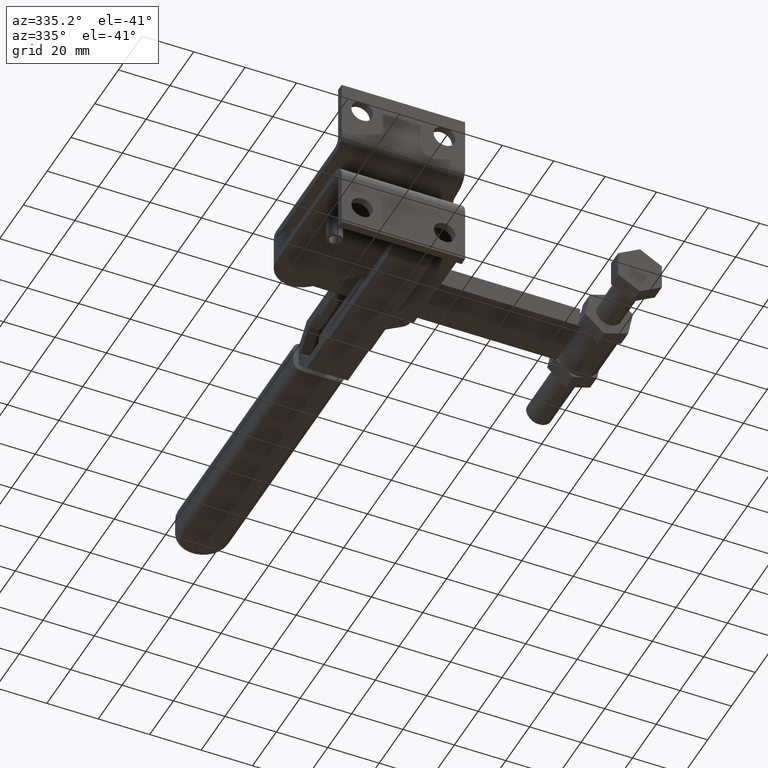
[diagram: clean part render]
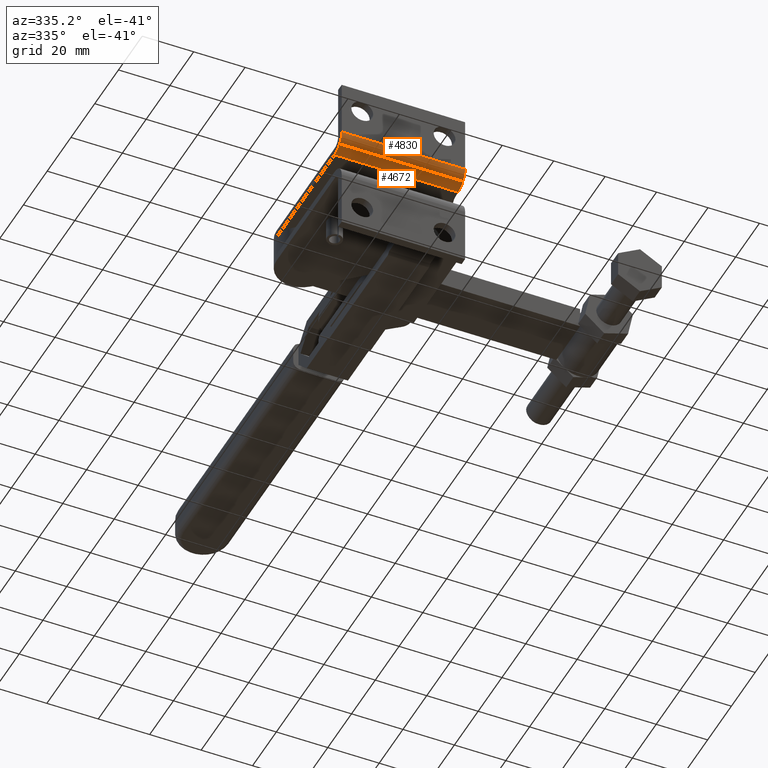
[diagram: same view with one multi-face feature highlighted, each face labeled with its STEP entity id]
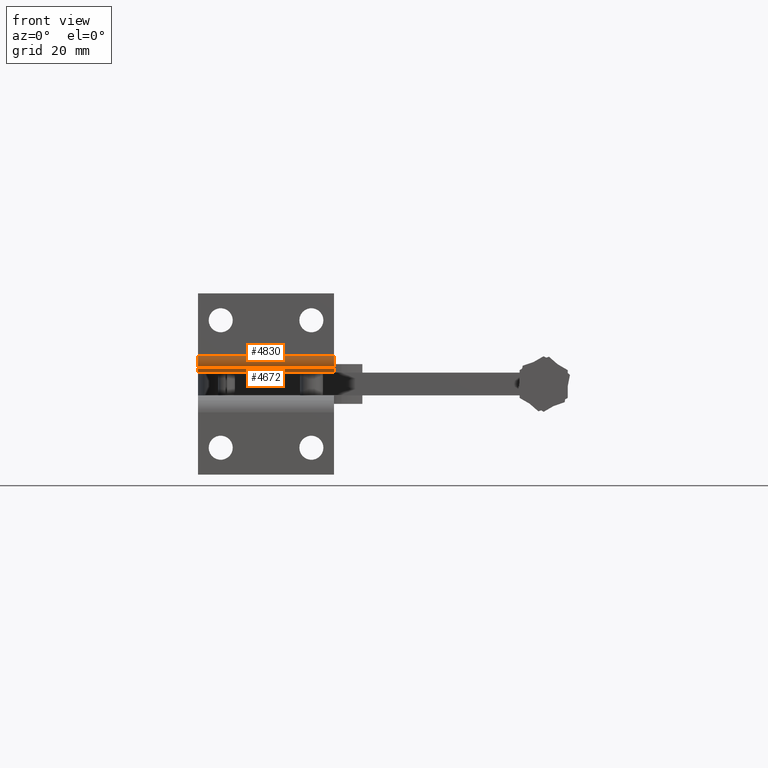
[diagram: same view with one multi-face feature highlighted, each face labeled with its STEP entity id]
A machine part, auxiliary view. The highlighted faces form ONE feature: a constant-radius fillet chain: 2 tangent blend faces with common blend radius 6 mm. The faces share edges in the B-rep.
A second angle (front view) of the same feature is appended — it is thin or edge-on in the first view.
Their STEP definitions:
[1] entity #4830 (Cylinder):
#4636=CARTESIAN_POINT('',(-1012.357969662263300,66.849608895347131,5.757359312880201));
#4637=VERTEX_POINT('',#4636);
#4638=CARTESIAN_POINT('',(-964.357969662263490,66.849608895347103,5.757359312880229));
#4639=VERTEX_POINT('',#4638);
#4640=CARTESIAN_POINT('',(-1012.357969662263300,66.849608895347131,5.757359312880201));
#4641=DIRECTION('',(1.0,0.0,0.0));
#4642=VECTOR('',#4641,47.999999999999773);
#4643=LINE('',#4640,#4642);
#4644=EDGE_CURVE('',#4637,#4639,#4643,.T.);
#4798=CARTESIAN_POINT('',(-981.950785214464300,71.092249582466408,9.999999999999499));
#4799=DIRECTION('',(1.0,-6.106227E-016,5.133173E-016));
#4800=DIRECTION('',(-6.880526E-017,-0.707106781186547,-0.707106781186547));
#4801=AXIS2_PLACEMENT_3D('',#4798,#4799,#4800);
#4802=CYLINDRICAL_SURFACE('',#4801,6.000000000000001);
#4803=ORIENTED_EDGE('',*,*,#4644,.T.);
#4804=CARTESIAN_POINT('',(-964.357969660484970,65.092249582466380,9.999999999999508));
#4805=VERTEX_POINT('',#4804);
#4806=CARTESIAN_POINT('',(-964.357969662263490,71.092249582466394,9.999999999999508));
#4807=DIRECTION('',(-1.000000000000000,4.865266E-017,4.865266E-017));
#4808=DIRECTION('',(-6.880526E-017,-0.707106781186547,-0.707106781186547));
#4809=AXIS2_PLACEMENT_3D('',#4806,#4807,#4808);
#4810=CIRCLE('',#4809,6.0);
#4811=EDGE_CURVE('',#4639,#4805,#4810,.T.);
#4812=ORIENTED_EDGE('',*,*,#4811,.T.);
#4813=CARTESIAN_POINT('',(-1012.357969660485100,65.092249582466422,9.999999999999483));
#4814=VERTEX_POINT('',#4813);
#4815=CARTESIAN_POINT('',(-964.357969660484970,65.092249582466380,9.999999999999508));
#4816=DIRECTION('',(-1.0,0.0,0.0));
#4817=VECTOR('',#4816,48.000000000000114);
#4818=LINE('',#4815,#4817);
#4819=EDGE_CURVE('',#4805,#4814,#4818,.T.);
#4820=ORIENTED_EDGE('',*,*,#4819,.T.);
#4821=CARTESIAN_POINT('',(-1012.357969662263300,71.092249582466422,9.999999999999483));
#4822=DIRECTION('',(1.000000000000000,-4.865266E-017,-4.865266E-017));
#4823=DIRECTION('',(-6.880526E-017,-0.707106781186547,-0.707106781186547));
#4824=AXIS2_PLACEMENT_3D('',#4821,#4822,#4823);
#4825=CIRCLE('',#4824,6.0);
#4826=EDGE_CURVE('',#4814,#4637,#4825,.T.);
#4827=ORIENTED_EDGE('',*,*,#4826,.T.);
#4828=EDGE_LOOP('',(#4803,#4812,#4820,#4827));
#4829=FACE_OUTER_BOUND('',#4828,.T.);
#4830=ADVANCED_FACE('',(#4829),#4802,.T.);
[2] entity #4672 (Cylinder):
#4631=CARTESIAN_POINT('',(-981.950785214464300,71.092249582466408,9.999999999999499));
#4632=DIRECTION('',(1.0,-6.106227E-016,5.133173E-016));
#4633=DIRECTION('',(-6.880526E-017,-0.707106781186547,-0.707106781186547));
#4634=AXIS2_PLACEMENT_3D('',#4631,#4632,#4633);
#4635=CYLINDRICAL_SURFACE('',#4634,6.000000000000001);
#4636=CARTESIAN_POINT('',(-1012.357969662263300,66.849608895347131,5.757359312880201));
#4637=VERTEX_POINT('',#4636);
#4638=CARTESIAN_POINT('',(-964.357969662263490,66.849608895347103,5.757359312880229));
#4639=VERTEX_POINT('',#4638);
#4640=CARTESIAN_POINT('',(-1012.357969662263300,66.849608895347131,5.757359312880201));
#4641=DIRECTION('',(1.0,0.0,0.0));
#4642=VECTOR('',#4641,47.999999999999773);
#4643=LINE('',#4640,#4642);
#4644=EDGE_CURVE('',#4637,#4639,#4643,.T.);
#4645=ORIENTED_EDGE('',*,*,#4644,.F.);
#4646=CARTESIAN_POINT('',(-1012.357969662263300,71.092249582466422,3.999999999999484));
#4647=VERTEX_POINT('',#4646);
#4648=CARTESIAN_POINT('',(-1012.357969662263300,71.092249582466422,9.999999999999483));
#4649=DIRECTION('',(1.000000000000000,-4.865266E-017,-4.865266E-017));
#4650=DIRECTION('',(-6.880526E-017,-0.707106781186547,-0.707106781186547));
#4651=AXIS2_PLACEMENT_3D('',#4648,#4649,#4650);
#4652=CIRCLE('',#4651,6.0);
#4653=EDGE_CURVE('',#4637,#4647,#4652,.T.);
#4654=ORIENTED_EDGE('',*,*,#4653,.T.);
#4655=CARTESIAN_POINT('',(-964.357969662263490,71.092249585627357,3.999999999999508));
#4656=VERTEX_POINT('',#4655);
#4657=CARTESIAN_POINT('',(-1012.357969662263300,71.092249582466422,3.999999999999484));
#4658=DIRECTION('',(1.0,6.585280E-011,5.088522E-016));
#4659=VECTOR('',#4658,47.999999999999773);
#4660=LINE('',#4657,#4659);
#4661=EDGE_CURVE('',#4647,#4656,#4660,.T.);
#4662=ORIENTED_EDGE('',*,*,#4661,.T.);
#4663=CARTESIAN_POINT('',(-964.357969662263490,71.092249582466394,9.999999999999508));
#4664=DIRECTION('',(-1.000000000000000,4.865266E-017,4.865266E-017));
#4665=DIRECTION('',(-6.880526E-017,-0.707106781186547,-0.707106781186547));
#4666=AXIS2_PLACEMENT_3D('',#4663,#4664,#4665);
#4667=CIRCLE('',#4666,6.0);
#4668=EDGE_CURVE('',#4656,#4639,#4667,.T.);
#4669=ORIENTED_EDGE('',*,*,#4668,.T.);
#4670=EDGE_LOOP('',(#4645,#4654,#4662,#4669));
#4671=FACE_OUTER_BOUND('',#4670,.T.);
#4672=ADVANCED_FACE('',(#4671),#4635,.T.);